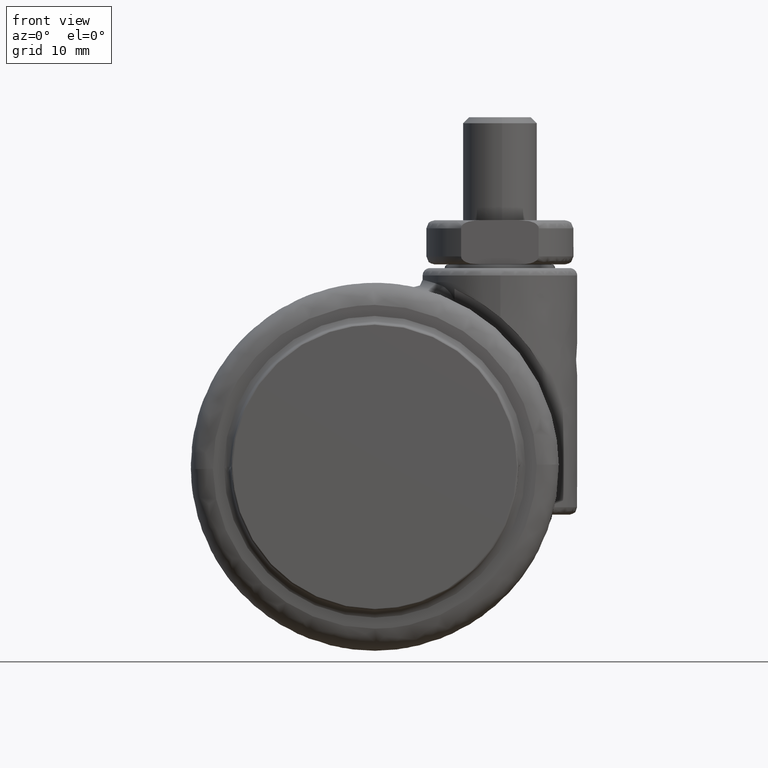
[diagram: clean part render]
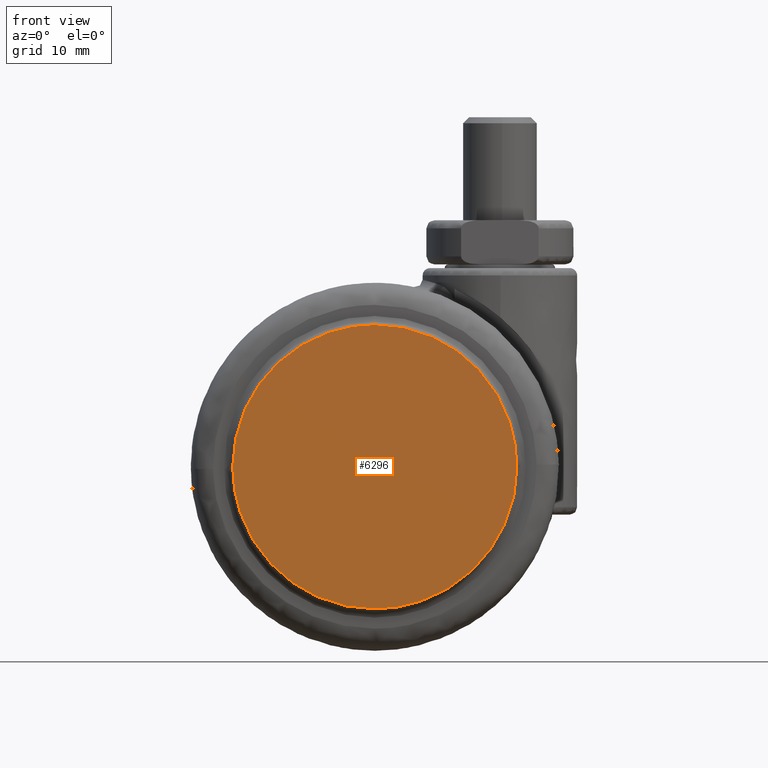
[diagram: same view with one face highlighted and labeled with its STEP entity id]
A machine part, front view. The second image highlights one B-rep face of the part: STEP entity #6296.
In plain terms, the highlighted face is a freeform B-spline surface patch.
Its self-contained STEP definition (entity closure, byte-faithful):
#6158=CARTESIAN_POINT('',(-19.300000003138631,-21.600000000000001,-1.770490E-015));
#6159=VERTEX_POINT('',#6158);
#6173=CARTESIAN_POINT('',(0.0,-21.600000000000001,19.300000000000001));
#6174=VERTEX_POINT('',#6173);
#6175=CARTESIAN_POINT('',(-19.300000003138631,-21.600000000000001,-1.770490E-015));
#6176=CARTESIAN_POINT('',(-19.300000001569316,-21.599999999999991,19.300000000000008));
#6177=CARTESIAN_POINT('',(0.0,-21.600000000000001,19.300000000000001));
#6185=(BOUNDED_CURVE()B_SPLINE_CURVE(2,(#6175,#6176,#6177),.UNSPECIFIED.,.F.,.U.)B_SPLINE_CURVE_WITH_KNOTS((3,3),(0.750000000000000,1.0),.UNSPECIFIED.)CURVE()GEOMETRIC_REPRESENTATION_ITEM()RATIONAL_B_SPLINE_CURVE((1.0,0.707106781186547,1.0))REPRESENTATION_ITEM(''));
#6186=EDGE_CURVE('',#6159,#6174,#6185,.T.);
#6188=CARTESIAN_POINT('',(19.300000003138621,-21.600000000000001,8.852452E-016));
#6189=VERTEX_POINT('',#6188);
#6190=CARTESIAN_POINT('',(0.0,-21.600000000000001,19.300000000000001));
#6191=CARTESIAN_POINT('',(19.300000001569316,-21.599999999999991,19.300000000000008));
#6192=CARTESIAN_POINT('',(19.300000003138621,-21.600000000000001,8.852452E-016));
#6200=(BOUNDED_CURVE()B_SPLINE_CURVE(2,(#6190,#6191,#6192),.UNSPECIFIED.,.F.,.U.)B_SPLINE_CURVE_WITH_KNOTS((3,3),(0.0,0.250000000000000),.UNSPECIFIED.)CURVE()GEOMETRIC_REPRESENTATION_ITEM()RATIONAL_B_SPLINE_CURVE((1.0,0.707106781186547,1.0))REPRESENTATION_ITEM(''));
#6201=EDGE_CURVE('',#6174,#6189,#6200,.T.);
#6253=CARTESIAN_POINT('',(0.0,-21.600000000000001,-19.300000000000001));
#6254=VERTEX_POINT('',#6253);
#6255=CARTESIAN_POINT('',(19.300000003138621,-21.600000000000001,8.852452E-016));
#6256=CARTESIAN_POINT('',(19.300000001569316,-21.600000000000009,-19.300000000000008));
#6257=CARTESIAN_POINT('',(0.0,-21.600000000000001,-19.300000000000001));
#6265=(BOUNDED_CURVE()B_SPLINE_CURVE(2,(#6255,#6256,#6257),.UNSPECIFIED.,.F.,.U.)B_SPLINE_CURVE_WITH_KNOTS((3,3),(0.250000000000000,0.500000000000000),.UNSPECIFIED.)CURVE()GEOMETRIC_REPRESENTATION_ITEM()RATIONAL_B_SPLINE_CURVE((1.0,0.707106781186547,1.0))REPRESENTATION_ITEM(''));
#6266=EDGE_CURVE('',#6189,#6254,#6265,.T.);
#6268=CARTESIAN_POINT('',(0.0,-21.600000000000001,-19.300000000000001));
#6269=CARTESIAN_POINT('',(-19.300000001569316,-21.600000000000009,-19.300000000000008));
#6270=CARTESIAN_POINT('',(-19.300000003138631,-21.600000000000001,-1.770490E-015));
#6278=(BOUNDED_CURVE()B_SPLINE_CURVE(2,(#6268,#6269,#6270),.UNSPECIFIED.,.F.,.U.)B_SPLINE_CURVE_WITH_KNOTS((3,3),(0.500000000000000,0.750000000000000),.UNSPECIFIED.)CURVE()GEOMETRIC_REPRESENTATION_ITEM()RATIONAL_B_SPLINE_CURVE((1.0,0.707106781186547,1.0))REPRESENTATION_ITEM(''));
#6279=EDGE_CURVE('',#6254,#6159,#6278,.T.);
#6285=CARTESIAN_POINT('',(-21.228069928637890,-21.600000000000001,-21.228069925185711));
#6286=CARTESIAN_POINT('',(-21.228069928637890,-21.600000000000001,21.228070960518391));
#6287=CARTESIAN_POINT('',(21.228070963970559,-21.600000000000001,-21.228069925185711));
#6288=CARTESIAN_POINT('',(21.228070963970559,-21.600000000000001,21.228070960518391));
#6289=B_SPLINE_SURFACE_WITH_KNOTS('',1,1,((#6285,#6287),(#6286,#6288)),.UNSPECIFIED.,.F.,.F.,.U.,(2,2),(2,2),(0.0,42.456140885704102),(0.0,42.456140892608452),.UNSPECIFIED.);
#6290=ORIENTED_EDGE('',*,*,#6186,.F.);
#6291=ORIENTED_EDGE('',*,*,#6279,.F.);
#6292=ORIENTED_EDGE('',*,*,#6266,.F.);
#6293=ORIENTED_EDGE('',*,*,#6201,.F.);
#6294=EDGE_LOOP('',(#6290,#6291,#6292,#6293));
#6295=FACE_OUTER_BOUND('',#6294,.T.);
#6296=ADVANCED_FACE('',(#6295),#6289,.F.);